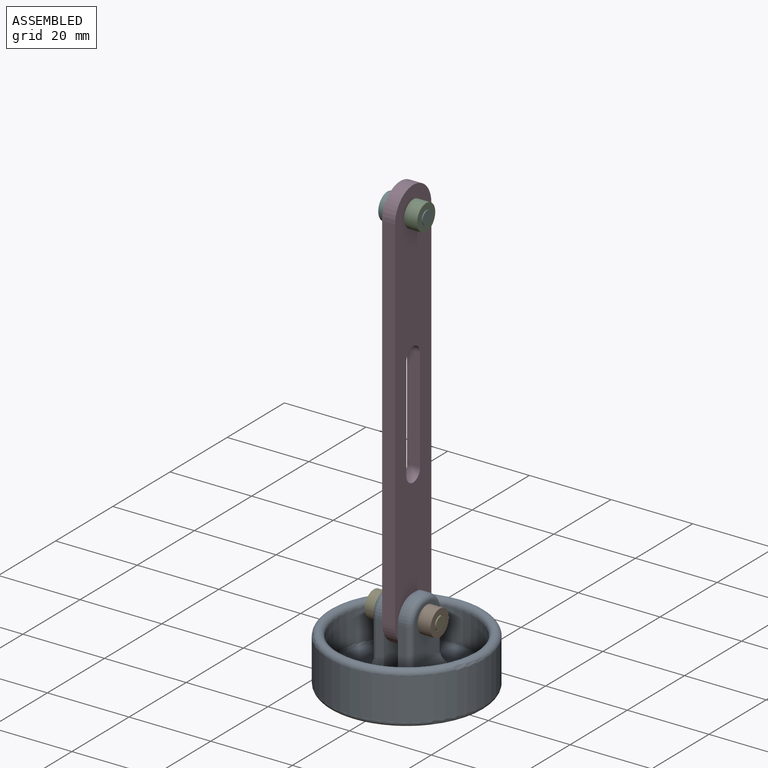
[diagram: assembled view]
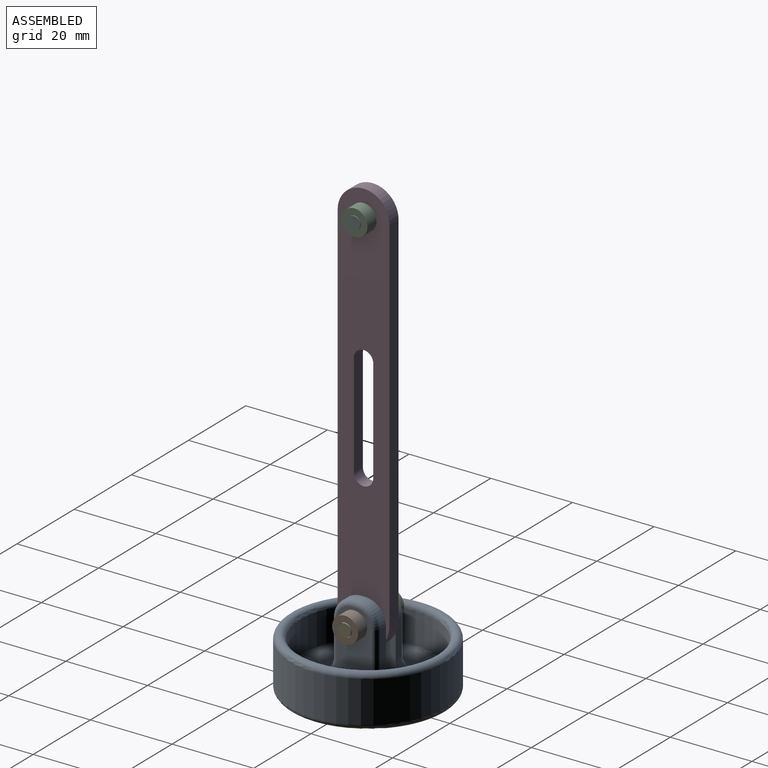
[diagram: assembled view, second angle]
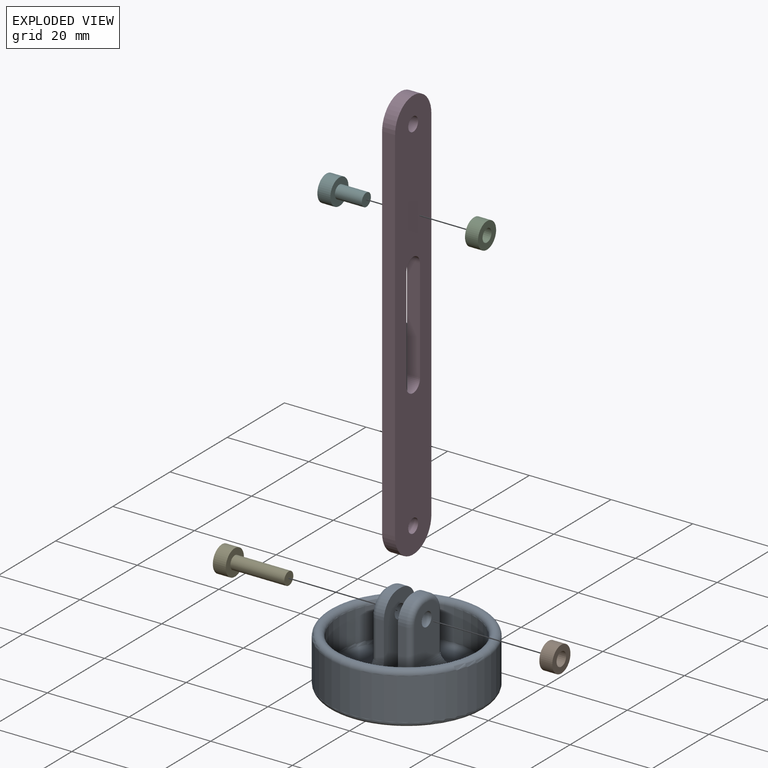
[diagram: exploded view]
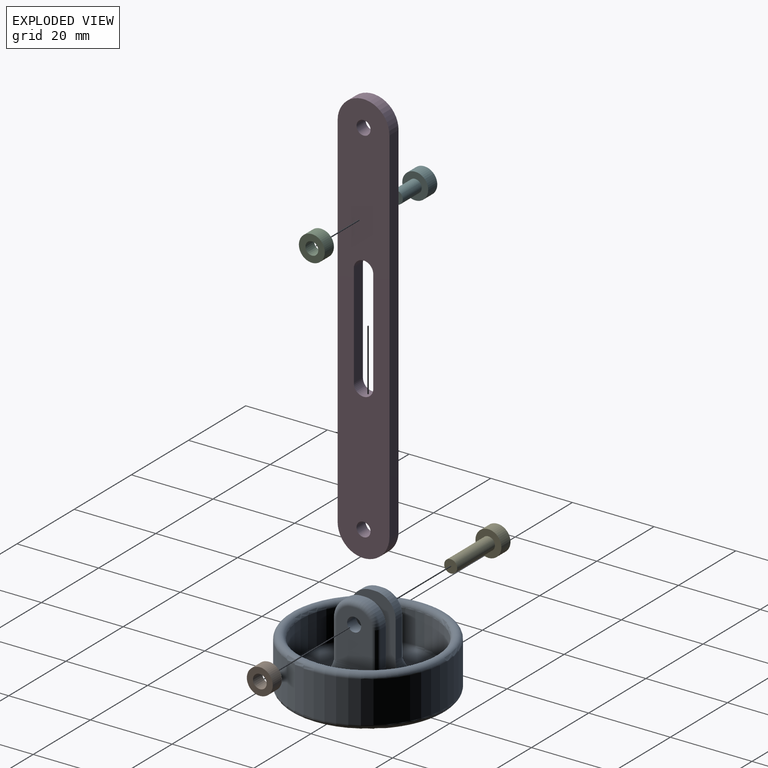
[diagram: exploded view, second angle]
ASSEMBLY  parts=6 mates=5
PART A: 43 faces, bbox 41.2x41.2x22 mm
  f0: cylinder r=19.05mm len=38.1mm, axis (0,0,1), area 1216.1mm2, adj f39,f40
  f1: plane 35.56x35.56mm, normal (0,0,-1), area 993.1mm2, adj f40
  f2: cylinder r=16.51mm len=33.02mm, axis (0,0,-1), area 790.5mm2, adj f38,f39
  f3: plane 30.48x30.48mm, normal (0,0,1), area 378.4mm2, adj f4,f11,f14,f15,f16,f19,f20,f21
  f4: plane 21.27x19.05mm, normal (1,0,0), area 202.5mm2, adj f3,f5,f7,f8,f14,f15,f17,f18
  f5: plane 8.89x1.91mm, normal (0,1,0), area 16.9mm2, adj f4,f14,f17,f36
  f6: plane 12.7x8.57mm, normal (-1,0,0), area 93.4mm2, adj f16,f32,f33,f34,f35,f36,f42
  f7: plane 8.89x1.91mm, normal (0,-1,0), area 16.9mm2, adj f4,f15,f18,f32
  f8: plane 1.91x0.95mm, normal (0,0,1), area 1.8mm2, adj f4,f17,f18,f34
  f9: plane 12.7x8.57mm, normal (1,0,0), area 93.4mm2, adj f20,f25,f26,f27,f28,f29,f41
  f10: plane 8.89x1.91mm, normal (0,1,0), area 16.9mm2, adj f11,f21,f22,f25
  f11: plane 21.27x19.05mm, normal (-1,0,0), area 202.5mm2, adj f3,f10,f12,f13,f19,f21,f22,f23
  f12: plane 8.89x1.91mm, normal (0,-1,0), area 16.9mm2, adj f11,f19,f23,f29
  f13: plane 1.91x0.95mm, normal (0,0,1), area 1.8mm2, adj f11,f22,f23,f27
  f14: cylinder r=5.08mm len=8.26mm, axis (-1,0,0), area 33.6mm2, adj f3,f4,f5,f37
  f15: cylinder r=5.08mm len=8.26mm, axis (1,0,0), area 33.6mm2, adj f3,f4,f7,f31
  f16: cylinder r=5.08mm len=21.27mm, axis (0,-1,0), area 105.2mm2, adj f3,f6,f31,f37
  f17: cylinder r=5.08mm len=5.08mm, axis (1,0,0), area 15.2mm2, adj f4,f5,f8,f35
  f18: cylinder r=5.08mm len=5.08mm, axis (-1,0,0), area 15.2mm2, adj f4,f7,f8,f33
  f19: cylinder r=5.08mm len=8.26mm, axis (1,0,0), area 33.6mm2, adj f3,f11,f12,f30
  f20: cylinder r=5.08mm len=21.27mm, axis (0,1,0), area 105.2mm2, adj f3,f9,f24,f30
  f21: cylinder r=5.08mm len=8.26mm, axis (-1,0,0), area 33.6mm2, adj f3,f10,f11,f24
  f22: cylinder r=5.08mm len=5.08mm, axis (1,0,0), area 15.2mm2, adj f10,f11,f13,f26
  f23: cylinder r=5.08mm len=5.08mm, axis (-1,0,0), area 15.2mm2, adj f11,f12,f13,f28
  f24: bspline ~6.35x6.35mm, area 11.4mm2, adj f20,f21,f25
  f25: cylinder r=1.27mm len=8.89mm, axis (0,0,1), area 17.7mm2, adj f9,f10,f24,f26
  f26: torus R=3.81mm, axis (1,0,0), area 14.5mm2, adj f9,f22,f25,f27
  f27: cylinder r=1.27mm len=1.27mm, axis (0,-1,0), area 1.9mm2, adj f9,f13,f26,f28
  f28: torus R=3.81mm, axis (1,0,0), area 14.5mm2, adj f9,f23,f27,f29
  f29: cylinder r=1.27mm len=8.89mm, axis (0,0,-1), area 17.7mm2, adj f9,f12,f28,f30
  f30: bspline ~6.35x6.35mm, area 11.4mm2, adj f19,f20,f29
  f31: bspline ~6.35x6.35mm, area 11.4mm2, adj f15,f16,f32
  f32: cylinder r=1.27mm len=8.89mm, axis (0,0,1), area 17.7mm2, adj f6,f7,f31,f33
  f33: torus R=3.81mm, axis (1,0,0), area 14.5mm2, adj f6,f18,f32,f34
  f34: cylinder r=1.27mm len=1.27mm, axis (0,1,0), area 1.9mm2, adj f6,f8,f33,f35
  f35: torus R=3.81mm, axis (1,0,0), area 14.5mm2, adj f6,f17,f34,f36
  f36: cylinder r=1.27mm len=8.89mm, axis (0,0,-1), area 17.7mm2, adj f5,f6,f35,f37
  f37: bspline ~6.35x6.35mm, area 11.4mm2, adj f14,f16,f36
  f38: torus R=15.24mm, axis (0,0,1), area 201.2mm2, adj f2,f3
  f39: torus R=17.78mm, axis (0,0,1), area 445.7mm2, adj f0,f2
  f40: torus R=17.78mm, axis (0,0,1), area 233mm2, adj f0,f1
  f41: cylinder r=1.71mm len=3.43mm, axis (1,0,0), area 34.2mm2, adj f9,f11
  f42: cylinder r=1.71mm len=3.43mm, axis (1,0,0), area 34.2mm2, adj f4,f6
PART B: 4 faces, bbox 6.4x6.4x3.2 mm
  f0: cylinder r=3.17mm len=6.35mm, axis (0,0,1), area 63.3mm2, adj f1,f2
  f1: plane 6.35x6.35mm, normal (0,0,-1), area 22.7mm2, adj f0,f3
  f2: plane 6.35x6.35mm, normal (0,0,1), area 23.9mm2, adj f0,f3
  f3: cone r=1.57mm half-angle=2deg, axis (0,0,-1), area 32.5mm2, adj f1,f2
PART C: same geometry as B
PART D: 12 faces, bbox 12.7x101.6x3.2 mm
  f0: cylinder r=2.38mm len=4.76mm, axis (0,0,-1), area 23.8mm2, adj f1,f7,f8,f9
  f1: plane 25.4x3.18mm, normal (1,0,0), area 80.6mm2, adj f0,f2,f8,f9
  f2: cylinder r=2.38mm len=4.76mm, axis (0,0,-1), area 23.8mm2, adj f1,f7,f8,f9
  f3: plane 88.9x3.18mm, normal (1,0,0), area 282.3mm2, adj f8,f9,f10,f11
  f4: plane 88.9x3.18mm, normal (-1,0,0), area 282.3mm2, adj f8,f9,f10,f11
  f5: cylinder r=1.71mm len=3.43mm, axis (0,0,-1), area 34.2mm2, adj f8,f9
  f6: cylinder r=1.71mm len=3.43mm, axis (0,0,-1), area 34.2mm2, adj f8,f9
  f7: plane 25.4x3.18mm, normal (-1,0,0), area 80.6mm2, adj f0,f2,f8,f9
  f8: plane 101.6x12.7mm, normal (0,0,1), area 1098.5mm2, adj f0,f1,f2,f3,f4,f5,f6,f7
  f9: plane 101.6x12.7mm, normal (0,0,-1), area 1098.5mm2, adj f0,f1,f2,f3,f4,f5,f6,f7
  f10: cylinder r=6.35mm len=12.7mm, axis (0,0,1), area 63.3mm2, adj f3,f4,f8,f9
  f11: cylinder r=6.35mm len=12.7mm, axis (0,0,-1), area 63.3mm2, adj f3,f4,f8,f9
PART E: 5 faces, bbox 6.4x6.4x16.4 mm
  f0: cylinder r=3.17mm len=6.35mm, axis (0,0,1), area 63.3mm2, adj f1,f2
  f1: plane 6.35x6.35mm, normal (0,0,-1), area 31.7mm2, adj f0
  f2: plane 6.35x6.35mm, normal (0,0,1), area 23.8mm2, adj f0,f3
  f3: cylinder r=1.59mm len=13.21mm, axis (0,0,-1), area 131.7mm2, adj f2,f4
  f4: plane 3.18x3.18mm, normal (0,0,1), area 7.9mm2, adj f3
PART F: 5 faces, bbox 6.4x6.4x9.8 mm
  f0: cylinder r=3.17mm len=6.35mm, axis (0,0,1), area 63.3mm2, adj f1,f2
  f1: plane 6.35x6.35mm, normal (0,0,-1), area 31.7mm2, adj f0
  f2: plane 6.35x6.35mm, normal (0,0,1), area 23.8mm2, adj f0,f3
  f3: cylinder r=1.59mm len=6.6mm, axis (0,0,-1), area 65.9mm2, adj f2,f4
  f4: plane 3.18x3.18mm, normal (0,0,1), area 7.9mm2, adj f3
PLACE A t=(0,0,2.54)mm
PLACE B rot(axis=(0.71,0,-0.71),180deg) t=(4.89,0,39.11)mm
PLACE C rot(axis=(0,1,0),90deg) t=(4.76,0,128.01)mm
PLACE D rot(axis=(0.58,-0.58,-0.58),120deg) t=(1.59,0,60.96)mm
PLACE E rot(axis=(0.71,0,0.71),180deg) t=(-4.89,0,45.98)mm
PLACE F rot(axis=(0.58,0.58,0.58),120deg) t=(-1.59,0,105.41)mm
MATE fastened C.f0 <-> D.f6  axis (-1,0,0) through (1.59,0,105.41)mm
MATE fastened D.f6 <-> F.f3  axis (-1,0,0) through (-1.59,0,105.41)mm
MATE fastened B.f0 <-> A.f41  axis (-1,0,0) through (4.89,0,16.51)mm
MATE revolute E.f0 <-> A.f41  axis (1,0,0) through (-4.89,0,16.51)mm
MATE fastened D.f5 <-> A.f41  axis (-1,0,0) through (-1.59,0,16.51)mm
